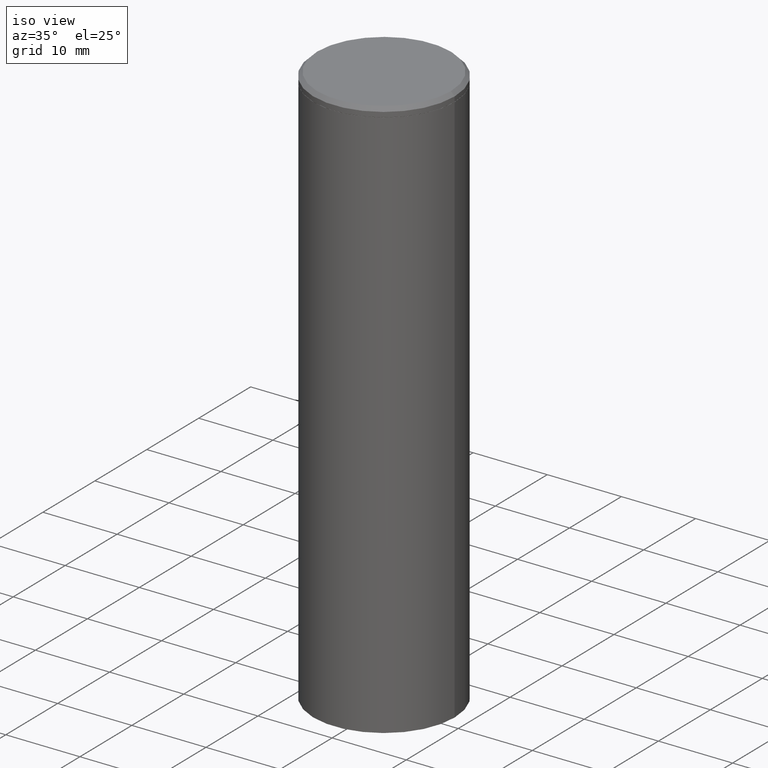
[diagram: clean part render]
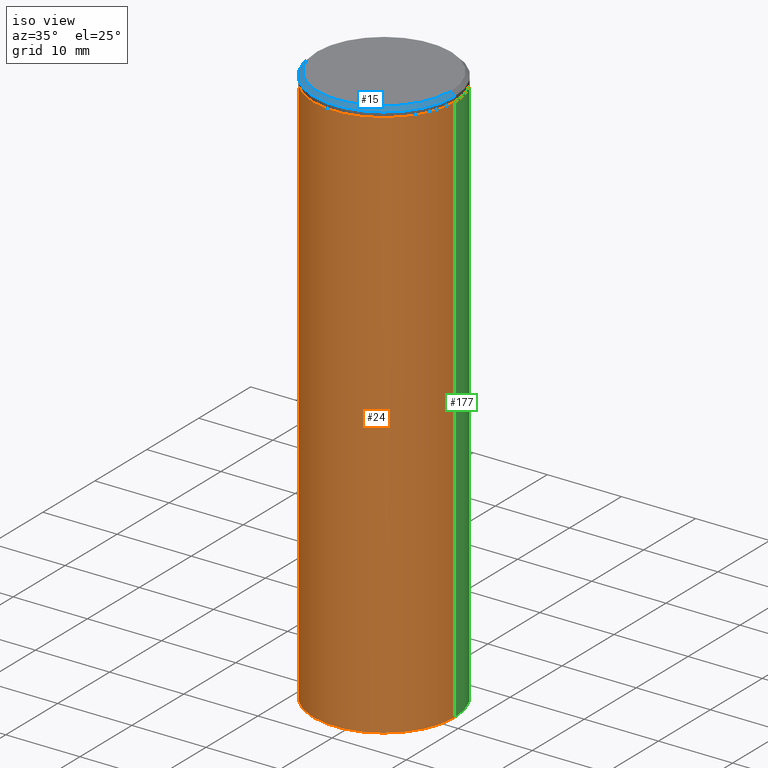
[diagram: same view with three faces highlighted in distinct colors, each labeled with its STEP entity id]
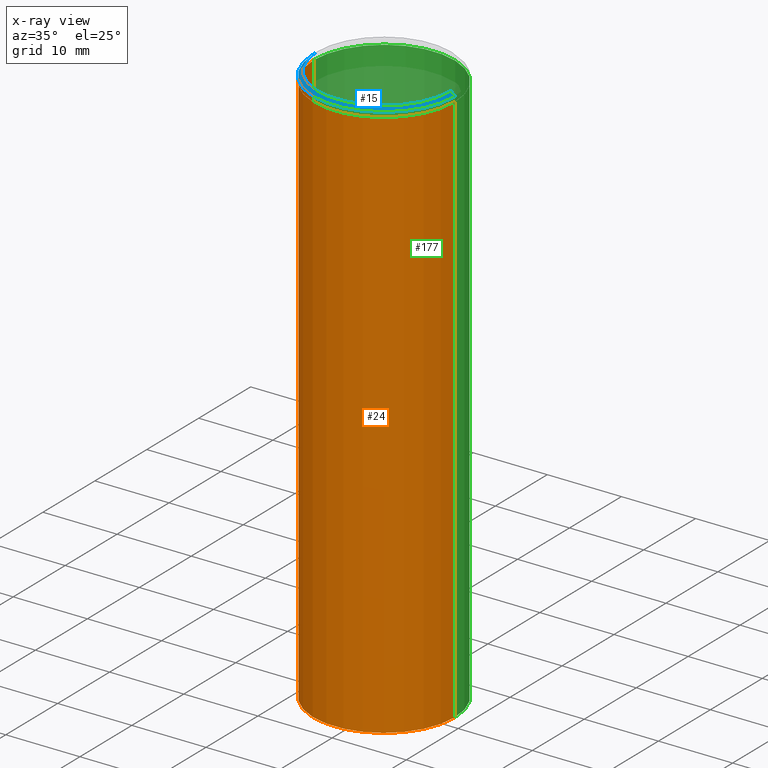
[diagram: x-ray of the same camera — body ghosted, the three highlighted faces saturated]
A machine part, iso view with three faces highlighted in distinct colors.
The next image is the same camera in x-ray (body ghosted, the three faces saturated) — at least one of them is partly hidden behind the body in this view.
Their STEP definitions:

[orange] entity #24 — the highlighted cylindrical surface (partial cylindrical patch) has radius 9.525 mm, axis along (-0, 0, 1).
#6 = AXIS2_PLACEMENT_3D ( 'NONE', #330, #62, #200 ) ;
#19 = ORIENTED_EDGE ( 'NONE', *, *, #43, .F. ) ;
#24 = ADVANCED_FACE ( 'NONE', ( #72 ), #354, .T. ) ;
#26 = ORIENTED_EDGE ( 'NONE', *, *, #352, .T. ) ;
#34 = CIRCLE ( 'NONE', #297, 0.3750000000000000555 ) ;
#36 = DIRECTION ( 'NONE',  ( 1.000000000000000000, -6.982962677686266711E-15, 0.000000000000000000 ) ) ;
#40 = CARTESIAN_POINT ( 'NONE',  ( -0.3750000000000000555, 2.664535259100376091E-15, -1.844600658845589598E-29 ) ) ;
#43 = EDGE_CURVE ( 'NONE', #59, #205, #68, .T. ) ;
#59 = VERTEX_POINT ( 'NONE', #137 ) ;
#62 = DIRECTION ( 'NONE',  ( -2.445468806185136597E-29, 3.491481338843145583E-15, 1.000000000000000000 ) ) ;
#68 = LINE ( 'NONE', #40, #231 ) ;
#72 = FACE_OUTER_BOUND ( 'NONE', #264, .T. ) ;
#75 = CARTESIAN_POINT ( 'NONE',  ( 1.154261276519397305E-30, -1.647979191933982939E-16, -0.04720000000000052626 ) ) ;
#78 = ORIENTED_EDGE ( 'NONE', *, *, #359, .T. ) ;
#80 = DIRECTION ( 'NONE',  ( -2.445468806185136597E-29, 3.491481338843145583E-15, 1.000000000000000000 ) ) ;
#87 = ORIENTED_EDGE ( 'NONE', *, *, #217, .F. ) ;
#104 = DIRECTION ( 'NONE',  ( -2.445468806185136877E-29, 3.491481338843145188E-15, 1.000000000000000000 ) ) ;
#137 = CARTESIAN_POINT ( 'NONE',  ( -0.3750000000000019984, -7.855833012397073715E-15, -3.000000000000000444 ) ) ;
#169 = LINE ( 'NONE', #269, #309 ) ;
#174 = DIRECTION ( 'NONE',  ( -2.445468806185136877E-29, 3.491481338843145188E-15, 1.000000000000000000 ) ) ;
#200 = DIRECTION ( 'NONE',  ( 1.000000000000000000, -6.982962677686265922E-15, 4.876176775795935793E-29 ) ) ;
#205 = VERTEX_POINT ( 'NONE', #307 ) ;
#213 = AXIS2_PLACEMENT_3D ( 'NONE', #290, #236, #36 ) ;
#217 = EDGE_CURVE ( 'NONE', #205, #334, #34, .T. ) ;
#221 = VERTEX_POINT ( 'NONE', #279 ) ;
#231 = VECTOR ( 'NONE', #174, 39.37007874015748143 ) ;
#236 = DIRECTION ( 'NONE',  ( -2.445468806185136597E-29, 3.491481338843145583E-15, 1.000000000000000000 ) ) ;
#264 = EDGE_LOOP ( 'NONE', ( #19, #26, #78, #87 ) ) ;
#269 = CARTESIAN_POINT ( 'NONE',  ( 0.3750000000000000555, -2.618611004132350016E-15, 1.828566290923476203E-29 ) ) ;
#279 = CARTESIAN_POINT ( 'NONE',  ( 0.3750000000000019984, -1.304713076569377647E-14, -3.000000000000000444 ) ) ;
#282 = DIRECTION ( 'NONE',  ( 1.000000000000000000, -6.982962677686265922E-15, 0.000000000000000000 ) ) ;
#290 = CARTESIAN_POINT ( 'NONE',  ( 7.336406418555409790E-29, -1.047444401652943635E-14, -3.000000000000000444 ) ) ;
#297 = AXIS2_PLACEMENT_3D ( 'NONE', #75, #80, #282 ) ;
#307 = CARTESIAN_POINT ( 'NONE',  ( -0.3750000000000000555, -2.655085708761041787E-15, -0.04720000000000052626 ) ) ;
#309 = VECTOR ( 'NONE', #104, 39.37007874015748143 ) ;
#330 = CARTESIAN_POINT ( 'NONE',  ( 0.000000000000000000, 0.000000000000000000, 0.000000000000000000 ) ) ;
#334 = VERTEX_POINT ( 'NONE', #351 ) ;
#351 = CARTESIAN_POINT ( 'NONE',  ( 0.3750000000000000555, -2.783408923325748236E-15, -0.04720000000000052626 ) ) ;
#352 = EDGE_CURVE ( 'NONE', #59, #221, #381, .T. ) ;
#354 = CYLINDRICAL_SURFACE ( 'NONE', #6, 0.3750000000000000555 ) ;
#359 = EDGE_CURVE ( 'NONE', #221, #334, #169, .T. ) ;
#381 = CIRCLE ( 'NONE', #213, 0.3750000000000000555 ) ;

[blue] entity #15 — the highlighted conical surface has half-angle 45 deg.
#15 = ADVANCED_FACE ( 'NONE', ( #44 ), #323, .T. ) ;
#21 = ORIENTED_EDGE ( 'NONE', *, *, #138, .T. ) ;
#28 = CARTESIAN_POINT ( 'NONE',  ( 4.890937612370280165E-31, -6.982962677686301470E-17, -0.02000000000000003164 ) ) ;
#44 = FACE_OUTER_BOUND ( 'NONE', #251, .T. ) ;
#56 = VERTEX_POINT ( 'NONE', #210 ) ;
#58 = LINE ( 'NONE', #163, #65 ) ;
#65 = VECTOR ( 'NONE', #127, 39.37007874015748143 ) ;
#71 = EDGE_CURVE ( 'NONE', #123, #313, #355, .T. ) ;
#77 = LINE ( 'NONE', #387, #201 ) ;
#84 = AXIS2_PLACEMENT_3D ( 'NONE', #206, #102, #237 ) ;
#86 = VERTEX_POINT ( 'NONE', #171 ) ;
#102 = DIRECTION ( 'NONE',  ( 2.445468806185136597E-29, -3.491481338843145583E-15, -1.000000000000000000 ) ) ;
#105 = AXIS2_PLACEMENT_3D ( 'NONE', #357, #140, #273 ) ;
#113 = DIRECTION ( 'NONE',  ( 0.7071067811865467956, -7.319954787623254468E-15, -0.7071067811865482389 ) ) ;
#123 = VERTEX_POINT ( 'NONE', #193 ) ;
#125 = CARTESIAN_POINT ( 'NONE',  ( 0.3549999999999998157, -2.538996582575039076E-15, 4.268512490117958041E-18 ) ) ;
#127 = DIRECTION ( 'NONE',  ( -0.7071067811865467956, 2.468850131082249172E-15, -0.7071067811865482389 ) ) ;
#138 = EDGE_CURVE ( 'NONE', #56, #86, #139, .T. ) ;
#139 = CIRCLE ( 'NONE', #291, 0.3749999999999998335 ) ;
#140 = DIRECTION ( 'NONE',  ( -2.445468806185136597E-29, 3.491481338843145583E-15, 1.000000000000000000 ) ) ;
#149 = EDGE_CURVE ( 'NONE', #123, #56, #58, .T. ) ;
#157 = ORIENTED_EDGE ( 'NONE', *, *, #149, .T. ) ;
#160 = DIRECTION ( 'NONE',  ( -2.445468806185136597E-29, 3.491481338843145583E-15, 1.000000000000000000 ) ) ;
#163 = CARTESIAN_POINT ( 'NONE',  ( -0.3749999999999998335, 2.548781377355485929E-15, -0.02000000000000003164 ) ) ;
#171 = CARTESIAN_POINT ( 'NONE',  ( 0.3749999999999998335, -2.642516375941186056E-15, -0.02000000000000003164 ) ) ;
#193 = CARTESIAN_POINT ( 'NONE',  ( -0.3549999999999998157, 2.513866563967054675E-15, 4.268512490082953109E-18 ) ) ;
#201 = VECTOR ( 'NONE', #113, 39.37007874015748143 ) ;
#206 = CARTESIAN_POINT ( 'NONE',  ( 4.890937612370280165E-31, -6.982962677686301470E-17, -0.02000000000000003164 ) ) ;
#210 = CARTESIAN_POINT ( 'NONE',  ( -0.3749999999999998335, 2.548781377355485929E-15, -0.02000000000000003164 ) ) ;
#225 = ORIENTED_EDGE ( 'NONE', *, *, #71, .F. ) ;
#237 = DIRECTION ( 'NONE',  ( -1.000000000000000000, 6.982962677686265922E-15, 0.000000000000000000 ) ) ;
#245 = EDGE_CURVE ( 'NONE', #313, #86, #77, .T. ) ;
#251 = EDGE_LOOP ( 'NONE', ( #255, #225, #157, #21 ) ) ;
#255 = ORIENTED_EDGE ( 'NONE', *, *, #245, .F. ) ;
#273 = DIRECTION ( 'NONE',  ( 1.000000000000000000, -6.982962677686266711E-15, 4.876231632511990425E-29 ) ) ;
#291 = AXIS2_PLACEMENT_3D ( 'NONE', #28, #160, #350 ) ;
#313 = VERTEX_POINT ( 'NONE', #125 ) ;
#323 = CONICAL_SURFACE ( 'NONE', #84, 0.3749999999999998335, 0.7853981633974472798 ) ;
#350 = DIRECTION ( 'NONE',  ( 1.000000000000000000, -6.982962677686265922E-15, 0.000000000000000000 ) ) ;
#355 = CIRCLE ( 'NONE', #105, 0.3549999999999998157 ) ;
#357 = CARTESIAN_POINT ( 'NONE',  ( -1.043851414335219820E-46, 1.490343170380447200E-32, 4.268512490100411279E-18 ) ) ;
#387 = CARTESIAN_POINT ( 'NONE',  ( 0.3749999999999998335, -2.642516375941186056E-15, -0.02000000000000003164 ) ) ;

[green] entity #177 — the highlighted cylindrical surface (partial cylindrical patch) has radius 9.525 mm, axis along (-0, 0, 1).
#40 = CARTESIAN_POINT ( 'NONE',  ( -0.3750000000000000555, 2.664535259100376091E-15, -1.844600658845589598E-29 ) ) ;
#43 = EDGE_CURVE ( 'NONE', #59, #205, #68, .T. ) ;
#49 = ORIENTED_EDGE ( 'NONE', *, *, #276, .T. ) ;
#59 = VERTEX_POINT ( 'NONE', #137 ) ;
#68 = LINE ( 'NONE', #40, #231 ) ;
#73 = CIRCLE ( 'NONE', #283, 0.3750000000000000555 ) ;
#88 = EDGE_CURVE ( 'NONE', #334, #205, #111, .T. ) ;
#94 = CYLINDRICAL_SURFACE ( 'NONE', #371, 0.3750000000000000555 ) ;
#104 = DIRECTION ( 'NONE',  ( -2.445468806185136877E-29, 3.491481338843145188E-15, 1.000000000000000000 ) ) ;
#111 = CIRCLE ( 'NONE', #335, 0.3750000000000000555 ) ;
#120 = ORIENTED_EDGE ( 'NONE', *, *, #359, .F. ) ;
#137 = CARTESIAN_POINT ( 'NONE',  ( -0.3750000000000019984, -7.855833012397073715E-15, -3.000000000000000444 ) ) ;
#143 = CARTESIAN_POINT ( 'NONE',  ( 7.336406418555409790E-29, -1.047444401652943635E-14, -3.000000000000000444 ) ) ;
#147 = DIRECTION ( 'NONE',  ( -2.445468806185136597E-29, 3.491481338843145583E-15, 1.000000000000000000 ) ) ;
#169 = LINE ( 'NONE', #269, #309 ) ;
#174 = DIRECTION ( 'NONE',  ( -2.445468806185136877E-29, 3.491481338843145188E-15, 1.000000000000000000 ) ) ;
#177 = ADVANCED_FACE ( 'NONE', ( #318 ), #94, .T. ) ;
#205 = VERTEX_POINT ( 'NONE', #307 ) ;
#207 = CARTESIAN_POINT ( 'NONE',  ( 1.154261276519397305E-30, -1.647979191933982939E-16, -0.04720000000000052626 ) ) ;
#221 = VERTEX_POINT ( 'NONE', #279 ) ;
#224 = ORIENTED_EDGE ( 'NONE', *, *, #43, .T. ) ;
#231 = VECTOR ( 'NONE', #174, 39.37007874015748143 ) ;
#232 = DIRECTION ( 'NONE',  ( 1.000000000000000000, -6.982962677686266711E-15, 0.000000000000000000 ) ) ;
#260 = CARTESIAN_POINT ( 'NONE',  ( 0.000000000000000000, 0.000000000000000000, 0.000000000000000000 ) ) ;
#269 = CARTESIAN_POINT ( 'NONE',  ( 0.3750000000000000555, -2.618611004132350016E-15, 1.828566290923476203E-29 ) ) ;
#270 = DIRECTION ( 'NONE',  ( -2.445468806185136597E-29, 3.491481338843145583E-15, 1.000000000000000000 ) ) ;
#276 = EDGE_CURVE ( 'NONE', #221, #59, #73, .T. ) ;
#279 = CARTESIAN_POINT ( 'NONE',  ( 0.3750000000000019984, -1.304713076569377647E-14, -3.000000000000000444 ) ) ;
#280 = EDGE_LOOP ( 'NONE', ( #49, #224, #362, #120 ) ) ;
#283 = AXIS2_PLACEMENT_3D ( 'NONE', #143, #147, #232 ) ;
#307 = CARTESIAN_POINT ( 'NONE',  ( -0.3750000000000000555, -2.655085708761041787E-15, -0.04720000000000052626 ) ) ;
#309 = VECTOR ( 'NONE', #104, 39.37007874015748143 ) ;
#318 = FACE_OUTER_BOUND ( 'NONE', #280, .T. ) ;
#334 = VERTEX_POINT ( 'NONE', #351 ) ;
#335 = AXIS2_PLACEMENT_3D ( 'NONE', #207, #382, #380 ) ;
#351 = CARTESIAN_POINT ( 'NONE',  ( 0.3750000000000000555, -2.783408923325748236E-15, -0.04720000000000052626 ) ) ;
#359 = EDGE_CURVE ( 'NONE', #221, #334, #169, .T. ) ;
#362 = ORIENTED_EDGE ( 'NONE', *, *, #88, .F. ) ;
#371 = AXIS2_PLACEMENT_3D ( 'NONE', #260, #270, #373 ) ;
#373 = DIRECTION ( 'NONE',  ( 1.000000000000000000, -6.982962677686265922E-15, 4.876176775795935793E-29 ) ) ;
#380 = DIRECTION ( 'NONE',  ( 1.000000000000000000, -6.982962677686265922E-15, 0.000000000000000000 ) ) ;
#382 = DIRECTION ( 'NONE',  ( -2.445468806185136597E-29, 3.491481338843145583E-15, 1.000000000000000000 ) ) ;